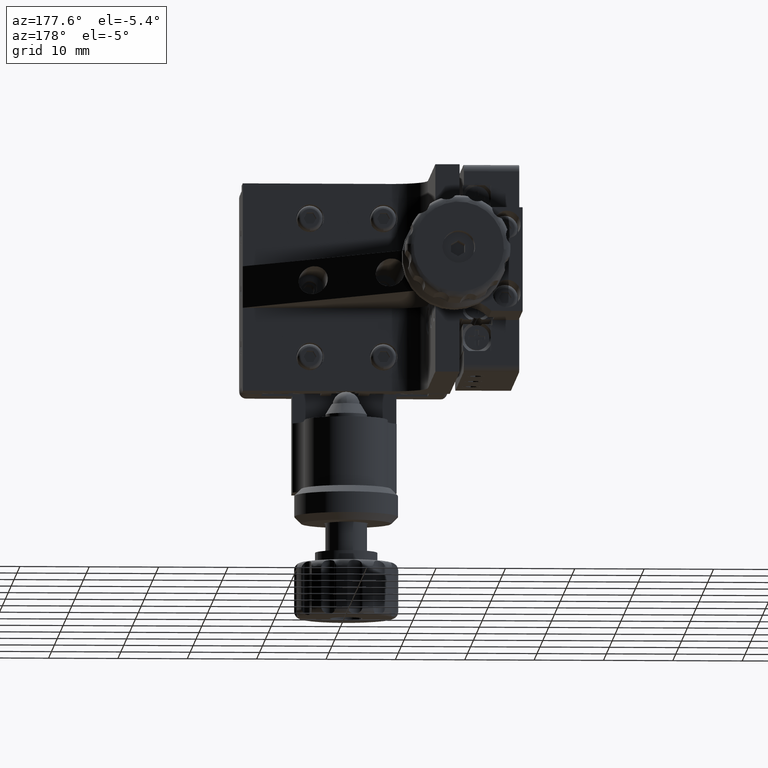
[diagram: clean part render]
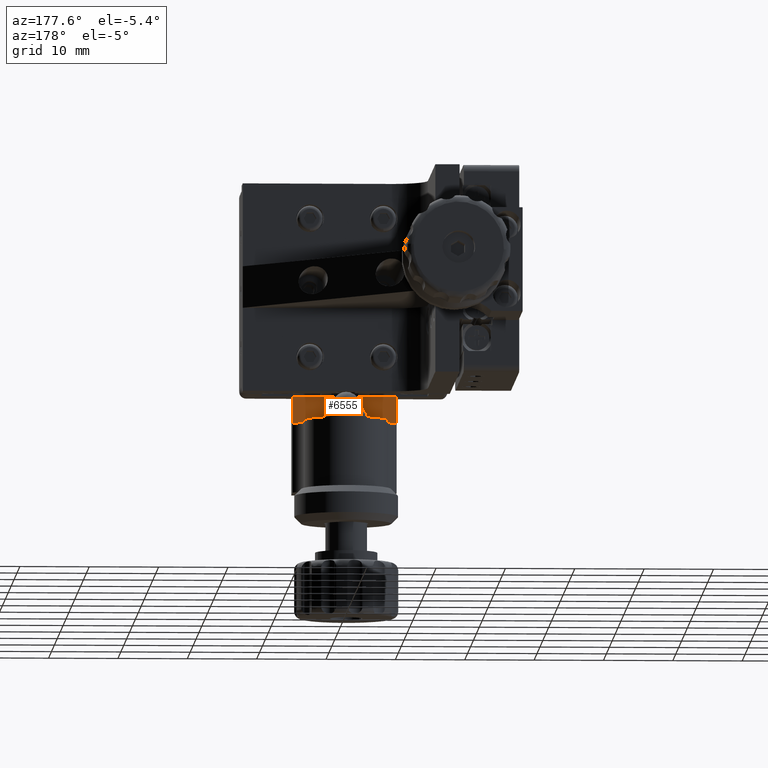
[diagram: same view with one face highlighted and labeled with its STEP entity id]
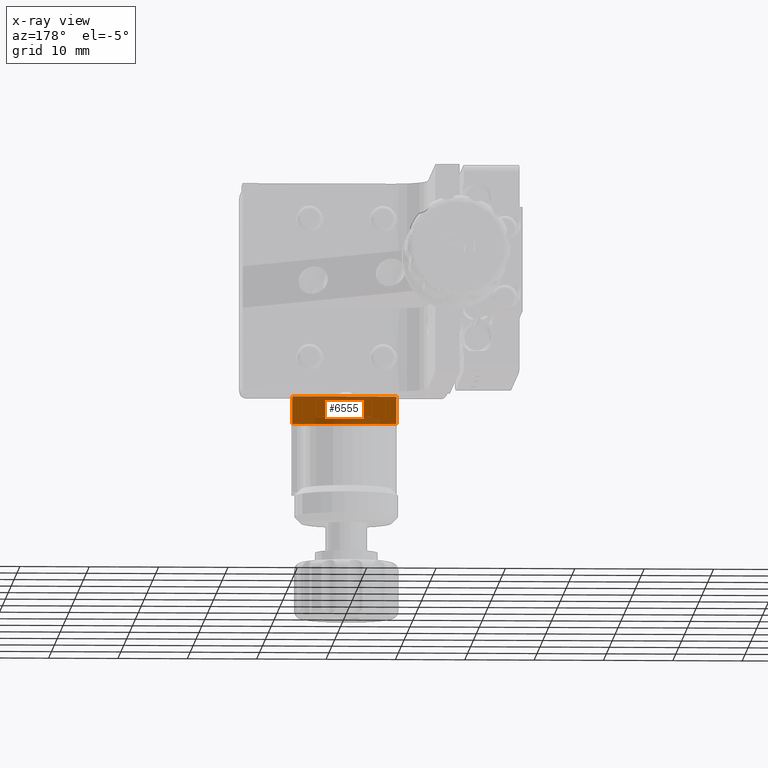
[diagram: x-ray of the same camera — body ghosted, the highlighted face saturated]
A machine part, auxiliary view. The second image highlights one B-rep face of the part: STEP entity #6555.
The next image is the same camera in x-ray: the body ghosted, the highlighted face saturated — about 17% of this face is hidden behind the body in this view.
In plain terms, the highlighted planar face has unit normal (-0, -1, -0).
Its self-contained STEP definition (entity closure, byte-faithful):
#801 = DIRECTION ( 'NONE',  ( 1.000000000000000000, 0.0000000000000000000, 1.232595164407830900E-031 ) ) ;
#932 = CARTESIAN_POINT ( 'NONE',  ( 11.50000000000002500, -0.8000000000000229200, -15.00000000000000700 ) ) ;
#1083 = CARTESIAN_POINT ( 'NONE',  ( 26.50000000000002500, -0.8000000000000229200, -15.00000000000000700 ) ) ;
#2956 = VERTEX_POINT ( 'NONE', #50404 ) ;
#3948 = DIRECTION ( 'NONE',  ( 1.232595164407830900E-031, -7.511126783110220900E-032, 1.000000000000000000 ) ) ;
#5010 = VECTOR ( 'NONE', #22030, 1000.000000000000000 ) ;
#5029 = DIRECTION ( 'NONE',  ( 1.232595164407830900E-031, -7.511126783110220900E-032, 1.000000000000000000 ) ) ;
#6555 = ADVANCED_FACE ( 'NONE', ( #32779 ), #45296, .F. ) ;
#11814 = LINE ( 'NONE', #932, #5010 ) ;
#13277 = ORIENTED_EDGE ( 'NONE', *, *, #23682, .T. ) ;
#15295 = VERTEX_POINT ( 'NONE', #36066 ) ;
#17344 = EDGE_LOOP ( 'NONE', ( #13277, #51169, #33771, #19127 ) ) ;
#17832 = CARTESIAN_POINT ( 'NONE',  ( 11.50000000000002500, -0.8000000000000229200, -19.00000000000000400 ) ) ;
#18803 = CARTESIAN_POINT ( 'NONE',  ( 26.50000000000002500, -0.8000000000000229200, -19.00000000000000400 ) ) ;
#19127 = ORIENTED_EDGE ( 'NONE', *, *, #24859, .T. ) ;
#20309 = VERTEX_POINT ( 'NONE', #1083 ) ;
#20959 = VECTOR ( 'NONE', #5029, 1000.000000000000000 ) ;
#22030 = DIRECTION ( 'NONE',  ( 1.000000000000000000, 0.0000000000000000000, 1.232595164407830900E-031 ) ) ;
#22263 = CARTESIAN_POINT ( 'NONE',  ( 11.50000000000002500, -0.8000000000000229200, -19.00000000000000400 ) ) ;
#23515 = DIRECTION ( 'NONE',  ( -1.851635710423160800E-062, -1.000000000000000000, -7.511126783110220900E-032 ) ) ;
#23682 = EDGE_CURVE ( 'NONE', #2956, #20309, #11814, .T. ) ;
#24434 = LINE ( 'NONE', #22263, #45602 ) ;
#24848 = EDGE_CURVE ( 'NONE', #15295, #40410, #24434, .T. ) ;
#24859 = EDGE_CURVE ( 'NONE', #15295, #2956, #46967, .T. ) ;
#25577 = CARTESIAN_POINT ( 'NONE',  ( 26.50000000000002500, -0.8000000000000229200, -19.00000000000000400 ) ) ;
#31718 = CARTESIAN_POINT ( 'NONE',  ( 11.50000000000002500, -0.8000000000000229200, -19.00000000000000400 ) ) ;
#32084 = DIRECTION ( 'NONE',  ( -1.232595164407830900E-031, 7.511126783110220900E-032, -1.000000000000000000 ) ) ;
#32779 = FACE_OUTER_BOUND ( 'NONE', #17344, .T. ) ;
#32875 = EDGE_CURVE ( 'NONE', #40410, #20309, #51325, .T. ) ;
#33771 = ORIENTED_EDGE ( 'NONE', *, *, #24848, .F. ) ;
#36066 = CARTESIAN_POINT ( 'NONE',  ( 11.50000000000002500, -0.8000000000000229200, -19.00000000000000400 ) ) ;
#40410 = VERTEX_POINT ( 'NONE', #18803 ) ;
#44392 = AXIS2_PLACEMENT_3D ( 'NONE', #31718, #23515, #32084 ) ;
#44480 = VECTOR ( 'NONE', #3948, 1000.000000000000000 ) ;
#45296 = PLANE ( 'NONE',  #44392 ) ;
#45602 = VECTOR ( 'NONE', #801, 1000.000000000000000 ) ;
#46967 = LINE ( 'NONE', #17832, #20959 ) ;
#50404 = CARTESIAN_POINT ( 'NONE',  ( 11.50000000000002500, -0.8000000000000229200, -15.00000000000000700 ) ) ;
#51169 = ORIENTED_EDGE ( 'NONE', *, *, #32875, .F. ) ;
#51325 = LINE ( 'NONE', #25577, #44480 ) ;